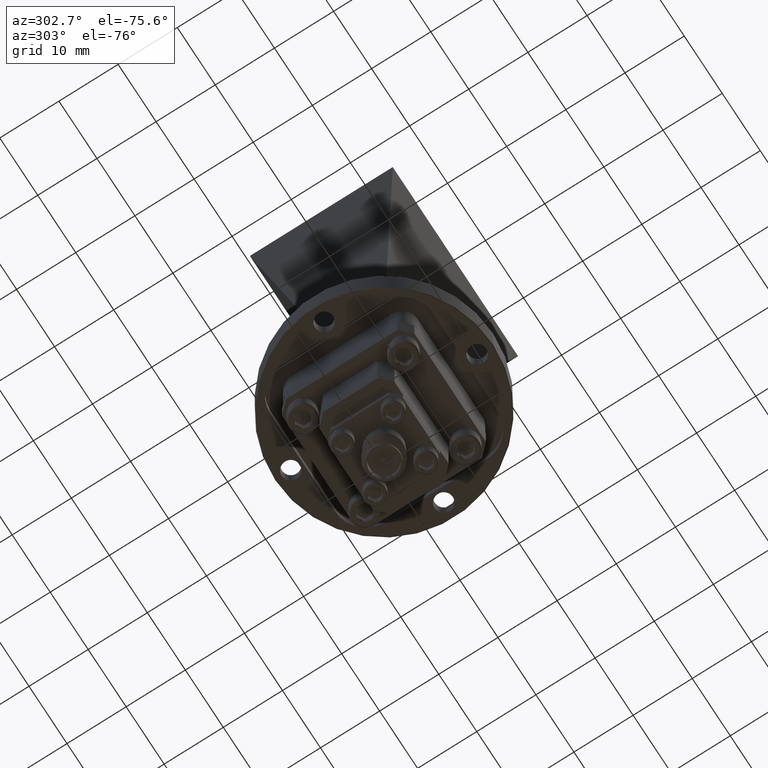
[diagram: clean part render]
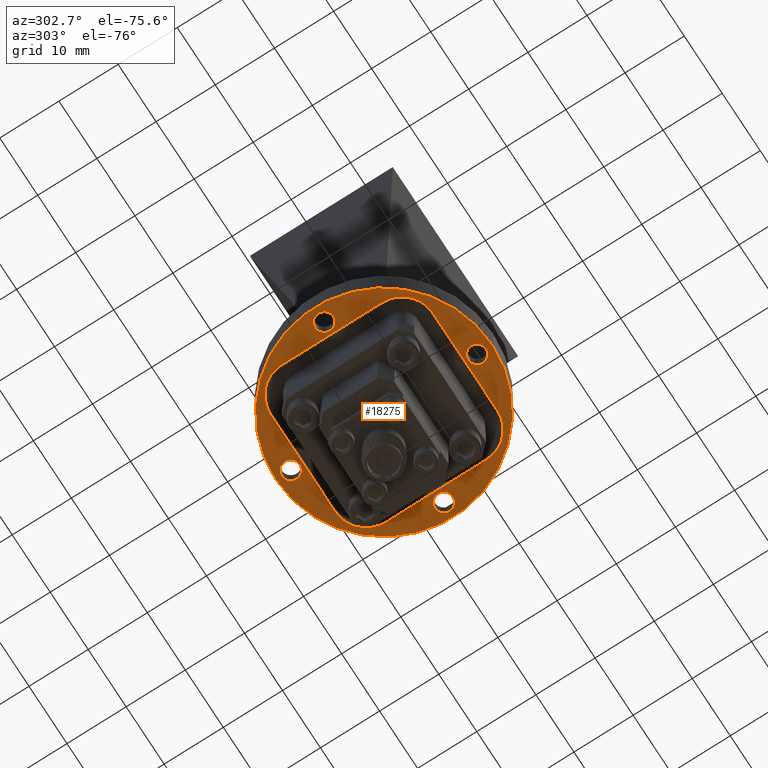
[diagram: same view with one face highlighted and labeled with its STEP entity id]
A machine part, auxiliary view. The second image highlights one B-rep face of the part: STEP entity #18275.
In plain terms, the highlighted planar face has unit normal (-0, -0, 1).
Its self-contained STEP definition (entity closure, byte-faithful):
#17 = DIRECTION ( 'NONE',  ( 2.775557561562891400E-016, -1.000000000000000000, 0.0000000000000000000 ) ) ;
#74 = ORIENTED_EDGE ( 'NONE', *, *, #13828, .T. ) ;
#232 = DIRECTION ( 'NONE',  ( -2.167549542363497100E-032, -4.252616922431773500E-048, 1.000000000000000000 ) ) ;
#266 = VERTEX_POINT ( 'NONE', #3930 ) ;
#780 = AXIS2_PLACEMENT_3D ( 'NONE', #18864, #9360, #18650 ) ;
#926 = AXIS2_PLACEMENT_3D ( 'NONE', #16176, #10032, #2222 ) ;
#999 = ORIENTED_EDGE ( 'NONE', *, *, #6270, .T. ) ;
#1259 = DIRECTION ( 'NONE',  ( 2.775557561562891400E-016, -1.000000000000000000, 0.0000000000000000000 ) ) ;
#1284 = DIRECTION ( 'NONE',  ( -2.167549542363497100E-032, -4.252616922431773500E-048, 1.000000000000000000 ) ) ;
#1562 = VERTEX_POINT ( 'NONE', #3854 ) ;
#1651 = VERTEX_POINT ( 'NONE', #7185 ) ;
#1673 = AXIS2_PLACEMENT_3D ( 'NONE', #15376, #18812, #7831 ) ;
#1810 = DIRECTION ( 'NONE',  ( 2.775557561562887400E-016, -1.000000000000000000, 0.0000000000000000000 ) ) ;
#1825 = CIRCLE ( 'NONE', #926, 0.2060000000000000400 ) ;
#1930 = DIRECTION ( 'NONE',  ( -2.167549542363497100E-032, -4.252616922431773500E-048, 1.000000000000000000 ) ) ;
#1962 = CARTESIAN_POINT ( 'NONE',  ( 3.964894904084564500E-016, 0.5400000000000000400, 0.3679999999999997200 ) ) ;
#2009 = AXIS2_PLACEMENT_3D ( 'NONE', #19588, #11796, #15034 ) ;
#2080 = EDGE_CURVE ( 'NONE', #1651, #8123, #11680, .T. ) ;
#2222 = DIRECTION ( 'NONE',  ( 3.315349506874105100E-016, -1.000000000000000000, 0.0000000000000000000 ) ) ;
#2452 = EDGE_LOOP ( 'NONE', ( #13184, #2749 ) ) ;
#2576 = FACE_BOUND ( 'NONE', #6241, .T. ) ;
#2725 = CIRCLE ( 'NONE', #14035, 0.2059999999999999900 ) ;
#2749 = ORIENTED_EDGE ( 'NONE', *, *, #9438, .T. ) ;
#2873 = LINE ( 'NONE', #6151, #13327 ) ;
#3001 = EDGE_CURVE ( 'NONE', #14535, #3350, #17983, .T. ) ;
#3088 = EDGE_CURVE ( 'NONE', #15316, #8531, #2873, .T. ) ;
#3325 = EDGE_LOOP ( 'NONE', ( #8483, #11909 ) ) ;
#3350 = VERTEX_POINT ( 'NONE', #5322 ) ;
#3485 = DIRECTION ( 'NONE',  ( -1.000000000000000000, -1.753159360341235300E-016, 2.167549542363497400E-032 ) ) ;
#3616 = AXIS2_PLACEMENT_3D ( 'NONE', #14070, #14203, #17 ) ;
#3715 = VERTEX_POINT ( 'NONE', #16708 ) ;
#3813 = VERTEX_POINT ( 'NONE', #18562 ) ;
#3820 = FACE_BOUND ( 'NONE', #2452, .T. ) ;
#3846 = EDGE_CURVE ( 'NONE', #1562, #15633, #14505, .T. ) ;
#3854 = CARTESIAN_POINT ( 'NONE',  ( -7.277596321242454200E-016, 0.6799999999999994900, 0.3679999999999997200 ) ) ;
#3930 = CARTESIAN_POINT ( 'NONE',  ( 0.6200000000000006600, 0.05999999999999953300, 0.3679999999999997200 ) ) ;
#4338 = VERTEX_POINT ( 'NONE', #5352 ) ;
#4463 = ORIENTED_EDGE ( 'NONE', *, *, #5136, .T. ) ;
#4733 = CIRCLE ( 'NONE', #5132, 0.05999999999999976900 ) ;
#4830 = EDGE_CURVE ( 'NONE', #3813, #16635, #8649, .T. ) ;
#4966 = CARTESIAN_POINT ( 'NONE',  ( -0.6199999999999994400, -5.135655680249321000E-016, 0.3679999999999997200 ) ) ;
#5132 = AXIS2_PLACEMENT_3D ( 'NONE', #20203, #232, #1810 ) ;
#5136 = EDGE_CURVE ( 'NONE', #4338, #7799, #1825, .T. ) ;
#5322 = CARTESIAN_POINT ( 'NONE',  ( 7.091487029752586500E-016, -0.5600000000000008300, 0.3680000000000002700 ) ) ;
#5352 = CARTESIAN_POINT ( 'NONE',  ( 0.5400000000000001500, 0.3340000000000000200, 0.3679999999999997200 ) ) ;
#5354 = DIRECTION ( 'NONE',  ( -2.167549542363497100E-032, -4.252616922431773500E-048, 1.000000000000000000 ) ) ;
#5745 = EDGE_CURVE ( 'NONE', #7517, #11826, #8614, .T. ) ;
#5770 = EDGE_CURVE ( 'NONE', #3350, #14535, #4733, .T. ) ;
#6111 = EDGE_CURVE ( 'NONE', #10083, #15316, #7387, .T. ) ;
#6151 = CARTESIAN_POINT ( 'NONE',  ( -3.964894904084568000E-016, -0.5400000000000001500, 0.3680000000000002700 ) ) ;
#6239 = FACE_BOUND ( 'NONE', #8774, .T. ) ;
#6241 = EDGE_LOOP ( 'NONE', ( #19611, #10056 ) ) ;
#6270 = EDGE_CURVE ( 'NONE', #7799, #3813, #17381, .T. ) ;
#6602 = AXIS2_PLACEMENT_3D ( 'NONE', #19232, #17706, #14476 ) ;
#6677 = LINE ( 'NONE', #7166, #11784 ) ;
#6827 = CARTESIAN_POINT ( 'NONE',  ( 0.3340000000000003000, -0.5400000000000002600, 0.3680000000000002700 ) ) ;
#6858 = CIRCLE ( 'NONE', #6602, 0.05999999999999972000 ) ;
#7166 = CARTESIAN_POINT ( 'NONE',  ( -0.5399999999999995900, -4.913611075324290500E-016, 0.3679999999999997200 ) ) ;
#7185 = CARTESIAN_POINT ( 'NONE',  ( -0.6199999999999994400, -0.06000000000000023400, 0.3679999999999997200 ) ) ;
#7366 = ORIENTED_EDGE ( 'NONE', *, *, #6111, .T. ) ;
#7387 = CIRCLE ( 'NONE', #9413, 0.2059999999999999900 ) ;
#7505 = AXIS2_PLACEMENT_3D ( 'NONE', #9225, #1284, #7615 ) ;
#7517 = VERTEX_POINT ( 'NONE', #13844 ) ;
#7615 = DIRECTION ( 'NONE',  ( 0.0000000000000000000, -1.000000000000000000, 0.0000000000000000000 ) ) ;
#7799 = VERTEX_POINT ( 'NONE', #10686 ) ;
#7820 = VECTOR ( 'NONE', #20134, 39.37007874015748100 ) ;
#7831 = DIRECTION ( 'NONE',  ( 2.775557561562887400E-016, -1.000000000000000000, 0.0000000000000000000 ) ) ;
#7890 = ORIENTED_EDGE ( 'NONE', *, *, #12364, .T. ) ;
#8030 = CARTESIAN_POINT ( 'NONE',  ( -0.5399999999999998100, 0.3339999999999998500, 0.3679999999999997200 ) ) ;
#8123 = VERTEX_POINT ( 'NONE', #9780 ) ;
#8169 = FACE_BOUND ( 'NONE', #18204, .T. ) ;
#8429 = AXIS2_PLACEMENT_3D ( 'NONE', #4966, #12758, #11265 ) ;
#8483 = ORIENTED_EDGE ( 'NONE', *, *, #5745, .T. ) ;
#8531 = VERTEX_POINT ( 'NONE', #6827 ) ;
#8571 = EDGE_CURVE ( 'NONE', #11770, #266, #6858, .T. ) ;
#8614 = CIRCLE ( 'NONE', #13822, 0.7200000000000002000 ) ;
#8649 = CIRCLE ( 'NONE', #780, 0.2060000000000000400 ) ;
#8774 = EDGE_LOOP ( 'NONE', ( #14062, #7890, #74, #4463, #999, #11399, #10343, #7366 ) ) ;
#8794 = LINE ( 'NONE', #16980, #7820 ) ;
#9078 = CARTESIAN_POINT ( 'NONE',  ( 5.463695987328526400E-016, -3.414809992080329000E-016, 0.3679999999999997200 ) ) ;
#9225 = CARTESIAN_POINT ( 'NONE',  ( 0.6200000000000006600, -1.693964303911336600E-016, 0.3679999999999997200 ) ) ;
#9360 = DIRECTION ( 'NONE',  ( -2.167549542363497100E-032, -4.252616922431773500E-048, 1.000000000000000000 ) ) ;
#9413 = AXIS2_PLACEMENT_3D ( 'NONE', #13727, #20094, #10521 ) ;
#9438 = EDGE_CURVE ( 'NONE', #266, #11770, #12132, .T. ) ;
#9580 = CARTESIAN_POINT ( 'NONE',  ( 0.6200000000000006600, -0.05999999999999988700, 0.3679999999999997200 ) ) ;
#9780 = CARTESIAN_POINT ( 'NONE',  ( -0.6199999999999994400, 0.05999999999999918600, 0.3679999999999997200 ) ) ;
#9808 = CARTESIAN_POINT ( 'NONE',  ( -0.6199999999999994400, -5.135655680249321000E-016, 0.3679999999999997200 ) ) ;
#10016 = DIRECTION ( 'NONE',  ( 2.775557561562887400E-016, -1.000000000000000000, 0.0000000000000000000 ) ) ;
#10032 = DIRECTION ( 'NONE',  ( -2.167549542363497100E-032, -4.252616922431773500E-048, 1.000000000000000000 ) ) ;
#10056 = ORIENTED_EDGE ( 'NONE', *, *, #3846, .T. ) ;
#10083 = VERTEX_POINT ( 'NONE', #13386 ) ;
#10315 = CARTESIAN_POINT ( 'NONE',  ( 0.3340000000000008000, -0.3340000000000002400, 0.3680000000000002700 ) ) ;
#10343 = ORIENTED_EDGE ( 'NONE', *, *, #14962, .T. ) ;
#10521 = DIRECTION ( 'NONE',  ( 3.315349506874106100E-016, -1.000000000000000000, 0.0000000000000000000 ) ) ;
#10686 = CARTESIAN_POINT ( 'NONE',  ( 0.3340000000000000200, 0.5400000000000005900, 0.3679999999999997200 ) ) ;
#11026 = EDGE_LOOP ( 'NONE', ( #14049, #15781 ) ) ;
#11064 = EDGE_CURVE ( 'NONE', #15633, #1562, #14745, .T. ) ;
#11265 = DIRECTION ( 'NONE',  ( 0.0000000000000000000, -1.000000000000000000, 0.0000000000000000000 ) ) ;
#11362 = EDGE_CURVE ( 'NONE', #11826, #7517, #14001, .T. ) ;
#11399 = ORIENTED_EDGE ( 'NONE', *, *, #4830, .T. ) ;
#11680 = CIRCLE ( 'NONE', #8429, 0.05999999999999972000 ) ;
#11770 = VERTEX_POINT ( 'NONE', #9580 ) ;
#11784 = VECTOR ( 'NONE', #13387, 39.37007874015748100 ) ;
#11796 = DIRECTION ( 'NONE',  ( -2.167549542363497400E-032, -5.674044639477388300E-048, 1.000000000000000000 ) ) ;
#11826 = VERTEX_POINT ( 'NONE', #16194 ) ;
#11909 = ORIENTED_EDGE ( 'NONE', *, *, #11362, .T. ) ;
#12132 = CIRCLE ( 'NONE', #7505, 0.05999999999999972000 ) ;
#12234 = VECTOR ( 'NONE', #3485, 39.37007874015748100 ) ;
#12364 = EDGE_CURVE ( 'NONE', #8531, #3715, #2725, .T. ) ;
#12757 = EDGE_CURVE ( 'NONE', #8123, #1651, #17568, .T. ) ;
#12758 = DIRECTION ( 'NONE',  ( -2.167549542363497100E-032, -4.252616922431773500E-048, 1.000000000000000000 ) ) ;
#12891 = AXIS2_PLACEMENT_3D ( 'NONE', #9808, #19118, #15875 ) ;
#12916 = ORIENTED_EDGE ( 'NONE', *, *, #2080, .T. ) ;
#13184 = ORIENTED_EDGE ( 'NONE', *, *, #8571, .T. ) ;
#13327 = VECTOR ( 'NONE', #20171, 39.37007874015748100 ) ;
#13386 = CARTESIAN_POINT ( 'NONE',  ( -0.5399999999999994800, -0.3340000000000004600, 0.3680000000000002700 ) ) ;
#13387 = DIRECTION ( 'NONE',  ( 2.775557561562890900E-016, -1.000000000000000000, 3.421138828918009300E-049 ) ) ;
#13602 = ORIENTED_EDGE ( 'NONE', *, *, #12757, .T. ) ;
#13727 = CARTESIAN_POINT ( 'NONE',  ( -0.3339999999999995200, -0.3340000000000002400, 0.3680000000000002700 ) ) ;
#13822 = AXIS2_PLACEMENT_3D ( 'NONE', #9078, #13903, #1259 ) ;
#13828 = EDGE_CURVE ( 'NONE', #3715, #4338, #8794, .T. ) ;
#13844 = CARTESIAN_POINT ( 'NONE',  ( 7.462097431653809000E-016, -0.7200000000000005300, 0.3679999999999997200 ) ) ;
#13903 = DIRECTION ( 'NONE',  ( 2.167549542363497100E-032, 4.252616922431773500E-048, -1.000000000000000000 ) ) ;
#13943 = CARTESIAN_POINT ( 'NONE',  ( 7.351075129191290800E-016, -0.6800000000000002700, 0.3680000000000002700 ) ) ;
#14001 = CIRCLE ( 'NONE', #3616, 0.7200000000000002000 ) ;
#14035 = AXIS2_PLACEMENT_3D ( 'NONE', #10315, #18020, #19731 ) ;
#14049 = ORIENTED_EDGE ( 'NONE', *, *, #3001, .T. ) ;
#14062 = ORIENTED_EDGE ( 'NONE', *, *, #3088, .T. ) ;
#14070 = CARTESIAN_POINT ( 'NONE',  ( 5.463695987328526400E-016, -3.414809992080329000E-016, 0.3679999999999997200 ) ) ;
#14087 = DIRECTION ( 'NONE',  ( 2.775557561562887400E-016, -1.000000000000000000, 0.0000000000000000000 ) ) ;
#14203 = DIRECTION ( 'NONE',  ( 2.167549542363497100E-032, 4.252616922431773500E-048, -1.000000000000000000 ) ) ;
#14476 = DIRECTION ( 'NONE',  ( 0.0000000000000000000, -1.000000000000000000, 0.0000000000000000000 ) ) ;
#14505 = CIRCLE ( 'NONE', #16546, 0.05999999999999976900 ) ;
#14535 = VERTEX_POINT ( 'NONE', #13943 ) ;
#14635 = CARTESIAN_POINT ( 'NONE',  ( -7.184541675497521800E-016, 0.6199999999999996600, 0.3679999999999997200 ) ) ;
#14745 = CIRCLE ( 'NONE', #20055, 0.05999999999999976900 ) ;
#14962 = EDGE_CURVE ( 'NONE', #16635, #10083, #6677, .T. ) ;
#15034 = DIRECTION ( 'NONE',  ( 2.775557561562890900E-016, -1.000000000000000000, 3.421138828918009300E-049 ) ) ;
#15316 = VERTEX_POINT ( 'NONE', #18557 ) ;
#15376 = CARTESIAN_POINT ( 'NONE',  ( 7.184541675497518900E-016, -0.6200000000000004400, 0.3680000000000002700 ) ) ;
#15633 = VERTEX_POINT ( 'NONE', #20057 ) ;
#15738 = CARTESIAN_POINT ( 'NONE',  ( -7.184541675497521800E-016, 0.6199999999999996600, 0.3679999999999997200 ) ) ;
#15781 = ORIENTED_EDGE ( 'NONE', *, *, #5770, .T. ) ;
#15875 = DIRECTION ( 'NONE',  ( 0.0000000000000000000, -1.000000000000000000, 0.0000000000000000000 ) ) ;
#15970 = FACE_BOUND ( 'NONE', #11026, .T. ) ;
#16176 = CARTESIAN_POINT ( 'NONE',  ( 0.3340000000000001300, 0.3340000000000005200, 0.3679999999999997200 ) ) ;
#16194 = CARTESIAN_POINT ( 'NONE',  ( 4.343162961483300300E-016, 0.7199999999999997500, 0.3679999999999997200 ) ) ;
#16546 = AXIS2_PLACEMENT_3D ( 'NONE', #15738, #1930, #14087 ) ;
#16635 = VERTEX_POINT ( 'NONE', #8030 ) ;
#16708 = CARTESIAN_POINT ( 'NONE',  ( 0.5400000000000008100, -0.3340000000000001900, 0.3680000000000002700 ) ) ;
#16980 = CARTESIAN_POINT ( 'NONE',  ( 0.5400000000000002600, -1.916008908836368800E-016, 0.3679999999999997200 ) ) ;
#17316 = FACE_OUTER_BOUND ( 'NONE', #3325, .T. ) ;
#17381 = LINE ( 'NONE', #1962, #12234 ) ;
#17568 = CIRCLE ( 'NONE', #12891, 0.05999999999999972000 ) ;
#17706 = DIRECTION ( 'NONE',  ( -2.167549542363497100E-032, -4.252616922431773500E-048, 1.000000000000000000 ) ) ;
#17983 = CIRCLE ( 'NONE', #1673, 0.05999999999999976900 ) ;
#18020 = DIRECTION ( 'NONE',  ( -2.167549542363497100E-032, -4.252616922431773500E-048, 1.000000000000000000 ) ) ;
#18200 = PLANE ( 'NONE',  #2009 ) ;
#18204 = EDGE_LOOP ( 'NONE', ( #12916, #13602 ) ) ;
#18275 = ADVANCED_FACE ( 'NONE', ( #17316, #6239, #3820, #15970, #8169, #2576 ), #18200, .F. ) ;
#18557 = CARTESIAN_POINT ( 'NONE',  ( -0.3339999999999994100, -0.5400000000000003700, 0.3680000000000002700 ) ) ;
#18562 = CARTESIAN_POINT ( 'NONE',  ( -0.3339999999999998500, 0.5399999999999999200, 0.3679999999999997200 ) ) ;
#18650 = DIRECTION ( 'NONE',  ( 3.315349506874105100E-016, -1.000000000000000000, 0.0000000000000000000 ) ) ;
#18812 = DIRECTION ( 'NONE',  ( -2.167549542363497100E-032, -4.252616922431773500E-048, 1.000000000000000000 ) ) ;
#18864 = CARTESIAN_POINT ( 'NONE',  ( -0.3339999999999998000, 0.3339999999999999100, 0.3679999999999997200 ) ) ;
#19118 = DIRECTION ( 'NONE',  ( -2.167549542363497100E-032, -4.252616922431773500E-048, 1.000000000000000000 ) ) ;
#19232 = CARTESIAN_POINT ( 'NONE',  ( 0.6200000000000006600, -1.693964303911336600E-016, 0.3679999999999997200 ) ) ;
#19588 = CARTESIAN_POINT ( 'NONE',  ( 5.463695987328526400E-016, -3.414809992080329000E-016, 0.3679999999999997200 ) ) ;
#19611 = ORIENTED_EDGE ( 'NONE', *, *, #11064, .T. ) ;
#19731 = DIRECTION ( 'NONE',  ( 3.315349506874106100E-016, -1.000000000000000000, 0.0000000000000000000 ) ) ;
#20055 = AXIS2_PLACEMENT_3D ( 'NONE', #14635, #5354, #10016 ) ;
#20057 = CARTESIAN_POINT ( 'NONE',  ( -7.018008221803749900E-016, 0.5599999999999999400, 0.3679999999999997200 ) ) ;
#20094 = DIRECTION ( 'NONE',  ( -2.167549542363497100E-032, -4.252616922431773500E-048, 1.000000000000000000 ) ) ;
#20134 = DIRECTION ( 'NONE',  ( -2.775557561562890900E-016, 1.000000000000000000, -3.421138828918009300E-049 ) ) ;
#20171 = DIRECTION ( 'NONE',  ( 1.000000000000000000, 1.753159360341235300E-016, -2.167549542363497400E-032 ) ) ;
#20203 = CARTESIAN_POINT ( 'NONE',  ( 7.184541675497518900E-016, -0.6200000000000004400, 0.3680000000000002700 ) ) ;